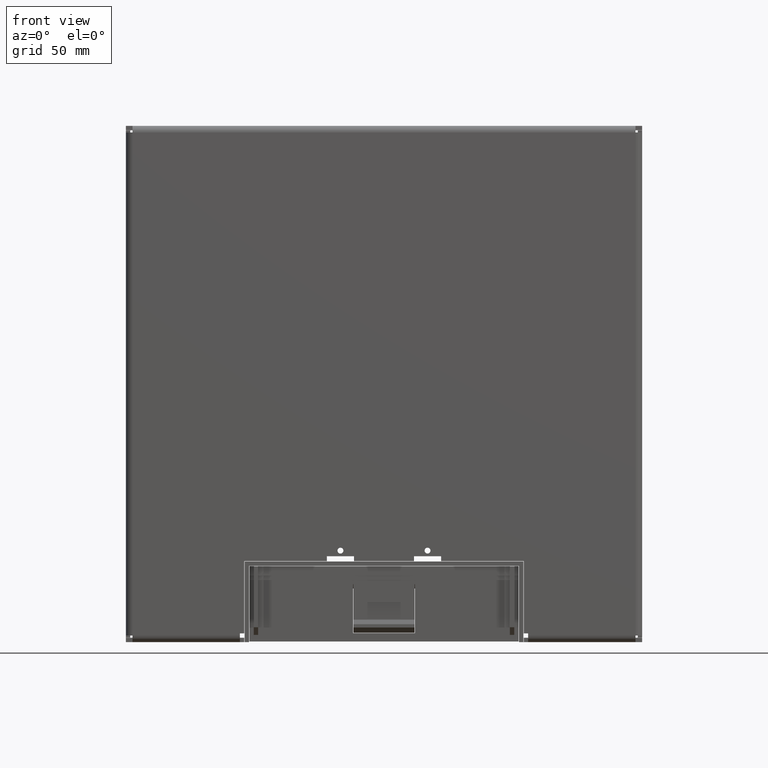
[diagram: clean part render]
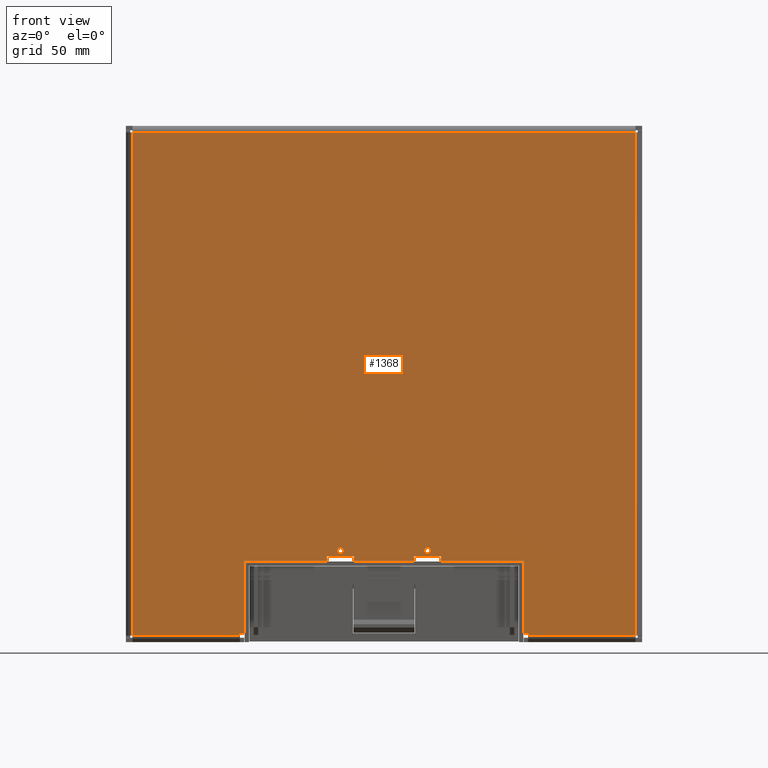
[diagram: same view with one face highlighted and labeled with its STEP entity id]
A machine part, front view. The second image highlights one B-rep face of the part: STEP entity #1368.
In plain terms, the highlighted planar face has unit normal (0, 1, 0).
Its self-contained STEP definition (entity closure, byte-faithful):
#305=CARTESIAN_POINT('',(2.E1,0.E0,-7.65E1));
#306=DIRECTION('',(0.E0,1.E0,0.E0));
#307=DIRECTION('',(1.E0,0.E0,0.E0));
#308=AXIS2_PLACEMENT_3D('',#305,#306,#307);
#310=CARTESIAN_POINT('',(2.E1,0.E0,-7.65E1));
#311=DIRECTION('',(0.E0,1.E0,0.E0));
#312=DIRECTION('',(-1.E0,0.E0,0.E0));
#313=AXIS2_PLACEMENT_3D('',#310,#311,#312);
#315=CARTESIAN_POINT('',(-2.E1,0.E0,-7.65E1));
#316=DIRECTION('',(0.E0,1.E0,0.E0));
#317=DIRECTION('',(1.E0,0.E0,0.E0));
#318=AXIS2_PLACEMENT_3D('',#315,#316,#317);
#320=CARTESIAN_POINT('',(-2.E1,0.E0,-7.65E1));
#321=DIRECTION('',(0.E0,1.E0,0.E0));
#322=DIRECTION('',(-1.E0,0.E0,0.E0));
#323=AXIS2_PLACEMENT_3D('',#320,#321,#322);
#325=DIRECTION('',(0.E0,0.E0,1.E0));
#326=VECTOR('',#325,2.2E0);
#327=CARTESIAN_POINT('',(2.62E1,0.E0,-8.13E1));
#328=LINE('',#327,#326);
#329=DIRECTION('',(-1.E0,0.E0,0.E0));
#330=VECTOR('',#329,1.24E1);
#331=CARTESIAN_POINT('',(2.62E1,0.E0,-7.91E1));
#332=LINE('',#331,#330);
#333=DIRECTION('',(0.E0,0.E0,-1.E0));
#334=VECTOR('',#333,2.2E0);
#335=CARTESIAN_POINT('',(1.38E1,0.E0,-7.91E1));
#336=LINE('',#335,#334);
#337=DIRECTION('',(1.E0,0.E0,0.E0));
#338=VECTOR('',#337,2.76E1);
#339=CARTESIAN_POINT('',(-1.38E1,0.E0,-8.13E1));
#340=LINE('',#339,#338);
#341=DIRECTION('',(0.E0,0.E0,1.E0));
#342=VECTOR('',#341,2.2E0);
#343=CARTESIAN_POINT('',(-1.38E1,0.E0,-8.13E1));
#344=LINE('',#343,#342);
#345=DIRECTION('',(-1.E0,0.E0,0.E0));
#346=VECTOR('',#345,1.24E1);
#347=CARTESIAN_POINT('',(-1.38E1,0.E0,-7.91E1));
#348=LINE('',#347,#346);
#349=DIRECTION('',(0.E0,0.E0,-1.E0));
#350=VECTOR('',#349,2.2E0);
#351=CARTESIAN_POINT('',(-2.62E1,0.E0,-7.91E1));
#352=LINE('',#351,#350);
#353=DIRECTION('',(1.E0,0.E0,0.E0));
#354=VECTOR('',#353,3.795E1);
#355=CARTESIAN_POINT('',(-6.415E1,0.E0,-8.13E1));
#356=LINE('',#355,#354);
#357=DIRECTION('',(0.E0,0.E0,1.E0));
#358=VECTOR('',#357,3.32E1);
#359=CARTESIAN_POINT('',(-6.415E1,0.E0,-1.145E2));
#360=LINE('',#359,#358);
#361=DIRECTION('',(-1.E0,0.E0,0.E0));
#362=VECTOR('',#361,2.05E0);
#363=CARTESIAN_POINT('',(-6.415E1,0.E0,-1.145E2));
#364=LINE('',#363,#362);
#365=DIRECTION('',(2.842170943040E-14,0.E0,1.E0));
#366=VECTOR('',#365,1.E0);
#367=CARTESIAN_POINT('',(-6.62E1,0.E0,-1.155E2));
#368=LINE('',#367,#366);
#369=DIRECTION('',(-2.842170943040E-14,0.E0,1.E0));
#370=VECTOR('',#369,1.E0);
#371=CARTESIAN_POINT('',(6.62E1,0.E0,-1.155E2));
#372=LINE('',#371,#370);
#373=DIRECTION('',(-1.E0,0.E0,0.E0));
#374=VECTOR('',#373,2.05E0);
#375=CARTESIAN_POINT('',(6.62E1,0.E0,-1.145E2));
#376=LINE('',#375,#374);
#377=DIRECTION('',(0.E0,0.E0,1.E0));
#378=VECTOR('',#377,3.32E1);
#379=CARTESIAN_POINT('',(6.415E1,0.E0,-1.145E2));
#380=LINE('',#379,#378);
#381=DIRECTION('',(1.E0,0.E0,0.E0));
#382=VECTOR('',#381,3.795E1);
#383=CARTESIAN_POINT('',(2.62E1,0.E0,-8.13E1));
#384=LINE('',#383,#382);
#502=DIRECTION('',(1.E0,0.E0,0.E0));
#503=VECTOR('',#502,4.93E1);
#504=CARTESIAN_POINT('',(6.62E1,0.E0,-1.155E2));
#505=LINE('',#504,#503);
#532=DIRECTION('',(0.E0,0.E0,-1.E0));
#533=VECTOR('',#532,2.31E2);
#534=CARTESIAN_POINT('',(1.155E2,0.E0,1.155E2));
#535=LINE('',#534,#533);
#624=DIRECTION('',(-1.E0,0.E0,0.E0));
#625=VECTOR('',#624,2.31E2);
#626=CARTESIAN_POINT('',(1.155E2,0.E0,1.155E2));
#627=LINE('',#626,#625);
#708=DIRECTION('',(0.E0,0.E0,-1.E0));
#709=VECTOR('',#708,2.31E2);
#710=CARTESIAN_POINT('',(-1.155E2,0.E0,1.155E2));
#711=LINE('',#710,#709);
#805=DIRECTION('',(1.E0,0.E0,0.E0));
#806=VECTOR('',#805,4.93E1);
#807=CARTESIAN_POINT('',(-1.155E2,0.E0,-1.155E2));
#808=LINE('',#807,#806);
#1086=CARTESIAN_POINT('',(-1.155E2,0.E0,-1.155E2));
#1088=VERTEX_POINT('',#1086);
#1102=CARTESIAN_POINT('',(-1.155E2,0.E0,1.155E2));
#1104=VERTEX_POINT('',#1102);
#1118=CARTESIAN_POINT('',(1.155E2,0.E0,-1.155E2));
#1120=VERTEX_POINT('',#1118);
#1134=CARTESIAN_POINT('',(1.155E2,0.E0,1.155E2));
#1136=VERTEX_POINT('',#1134);
#1205=CARTESIAN_POINT('',(-6.415E1,0.E0,-8.13E1));
#1207=VERTEX_POINT('',#1205);
#1209=CARTESIAN_POINT('',(6.415E1,0.E0,-8.13E1));
#1211=VERTEX_POINT('',#1209);
#1221=CARTESIAN_POINT('',(-6.62E1,0.E0,-1.155E2));
#1222=VERTEX_POINT('',#1221);
#1223=CARTESIAN_POINT('',(6.62E1,0.E0,-1.155E2));
#1224=VERTEX_POINT('',#1223);
#1225=CARTESIAN_POINT('',(-6.415E1,0.E0,-1.145E2));
#1226=VERTEX_POINT('',#1225);
#1227=CARTESIAN_POINT('',(6.415E1,0.E0,-1.145E2));
#1228=VERTEX_POINT('',#1227);
#1245=CARTESIAN_POINT('',(2.135E1,0.E0,-7.65E1));
#1246=CARTESIAN_POINT('',(1.865E1,0.E0,-7.65E1));
#1247=VERTEX_POINT('',#1245);
#1248=VERTEX_POINT('',#1246);
#1249=CARTESIAN_POINT('',(-1.865E1,0.E0,-7.65E1));
#1250=CARTESIAN_POINT('',(-2.135E1,0.E0,-7.65E1));
#1251=VERTEX_POINT('',#1249);
#1252=VERTEX_POINT('',#1250);
#1261=CARTESIAN_POINT('',(6.62E1,0.E0,-1.145E2));
#1262=VERTEX_POINT('',#1261);
#1263=CARTESIAN_POINT('',(-6.62E1,0.E0,-1.145E2));
#1264=VERTEX_POINT('',#1263);
#1277=CARTESIAN_POINT('',(2.62E1,0.E0,-8.13E1));
#1278=CARTESIAN_POINT('',(2.62E1,0.E0,-7.91E1));
#1279=VERTEX_POINT('',#1277);
#1280=VERTEX_POINT('',#1278);
#1281=CARTESIAN_POINT('',(1.38E1,0.E0,-7.91E1));
#1282=VERTEX_POINT('',#1281);
#1283=CARTESIAN_POINT('',(1.38E1,0.E0,-8.13E1));
#1284=VERTEX_POINT('',#1283);
#1285=CARTESIAN_POINT('',(-2.62E1,0.E0,-8.13E1));
#1286=VERTEX_POINT('',#1285);
#1287=CARTESIAN_POINT('',(-1.38E1,0.E0,-8.13E1));
#1288=VERTEX_POINT('',#1287);
#1301=CARTESIAN_POINT('',(-1.38E1,0.E0,-7.91E1));
#1302=VERTEX_POINT('',#1301);
#1303=CARTESIAN_POINT('',(-2.62E1,0.E0,-7.91E1));
#1304=VERTEX_POINT('',#1303);
#1309=CARTESIAN_POINT('',(0.E0,0.E0,0.E0));
#1310=DIRECTION('',(0.E0,1.E0,0.E0));
#1311=DIRECTION('',(1.E0,0.E0,0.E0));
#1312=AXIS2_PLACEMENT_3D('',#1309,#1310,#1311);
#1313=PLANE('',#1312);
#1315=ORIENTED_EDGE('',*,*,#1314,.T.);
#1317=ORIENTED_EDGE('',*,*,#1316,.T.);
#1319=ORIENTED_EDGE('',*,*,#1318,.T.);
#1321=ORIENTED_EDGE('',*,*,#1320,.F.);
#1323=ORIENTED_EDGE('',*,*,#1322,.T.);
#1325=ORIENTED_EDGE('',*,*,#1324,.T.);
#1327=ORIENTED_EDGE('',*,*,#1326,.T.);
#1329=ORIENTED_EDGE('',*,*,#1328,.F.);
#1331=ORIENTED_EDGE('',*,*,#1330,.F.);
#1333=ORIENTED_EDGE('',*,*,#1332,.T.);
#1335=ORIENTED_EDGE('',*,*,#1334,.F.);
#1337=ORIENTED_EDGE('',*,*,#1336,.F.);
#1339=ORIENTED_EDGE('',*,*,#1338,.F.);
#1341=ORIENTED_EDGE('',*,*,#1340,.F.);
#1343=ORIENTED_EDGE('',*,*,#1342,.T.);
#1345=ORIENTED_EDGE('',*,*,#1344,.F.);
#1347=ORIENTED_EDGE('',*,*,#1346,.T.);
#1349=ORIENTED_EDGE('',*,*,#1348,.T.);
#1351=ORIENTED_EDGE('',*,*,#1350,.T.);
#1353=ORIENTED_EDGE('',*,*,#1352,.F.);
#1354=EDGE_LOOP('',(#1315,#1317,#1319,#1321,#1323,#1325,#1327,#1329,#1331,#1333,
#1335,#1337,#1339,#1341,#1343,#1345,#1347,#1349,#1351,#1353));
#1355=FACE_OUTER_BOUND('',#1354,.F.);
#1357=ORIENTED_EDGE('',*,*,#1356,.F.);
#1359=ORIENTED_EDGE('',*,*,#1358,.F.);
#1360=EDGE_LOOP('',(#1357,#1359));
#1361=FACE_BOUND('',#1360,.F.);
#1363=ORIENTED_EDGE('',*,*,#1362,.F.);
#1365=ORIENTED_EDGE('',*,*,#1364,.F.);
#1366=EDGE_LOOP('',(#1363,#1365));
#1367=FACE_BOUND('',#1366,.F.);
#309=CIRCLE('',#308,1.35E0);
#314=CIRCLE('',#313,1.35E0);
#319=CIRCLE('',#318,1.35E0);
#324=CIRCLE('',#323,1.35E0);
#1314=EDGE_CURVE('',#1279,#1280,#328,.T.);
#1316=EDGE_CURVE('',#1280,#1282,#332,.T.);
#1318=EDGE_CURVE('',#1282,#1284,#336,.T.);
#1320=EDGE_CURVE('',#1288,#1284,#340,.T.);
#1322=EDGE_CURVE('',#1288,#1302,#344,.T.);
#1324=EDGE_CURVE('',#1302,#1304,#348,.T.);
#1326=EDGE_CURVE('',#1304,#1286,#352,.T.);
#1328=EDGE_CURVE('',#1207,#1286,#356,.T.);
#1330=EDGE_CURVE('',#1226,#1207,#360,.T.);
#1332=EDGE_CURVE('',#1226,#1264,#364,.T.);
#1334=EDGE_CURVE('',#1222,#1264,#368,.T.);
#1336=EDGE_CURVE('',#1088,#1222,#808,.T.);
#1338=EDGE_CURVE('',#1104,#1088,#711,.T.);
#1340=EDGE_CURVE('',#1136,#1104,#627,.T.);
#1342=EDGE_CURVE('',#1136,#1120,#535,.T.);
#1344=EDGE_CURVE('',#1224,#1120,#505,.T.);
#1346=EDGE_CURVE('',#1224,#1262,#372,.T.);
#1348=EDGE_CURVE('',#1262,#1228,#376,.T.);
#1350=EDGE_CURVE('',#1228,#1211,#380,.T.);
#1352=EDGE_CURVE('',#1279,#1211,#384,.T.);
#1356=EDGE_CURVE('',#1251,#1252,#319,.T.);
#1358=EDGE_CURVE('',#1252,#1251,#324,.T.);
#1362=EDGE_CURVE('',#1247,#1248,#309,.T.);
#1364=EDGE_CURVE('',#1248,#1247,#314,.T.);
#1368=ADVANCED_FACE('',(#1355,#1361,#1367),#1313,.F.);